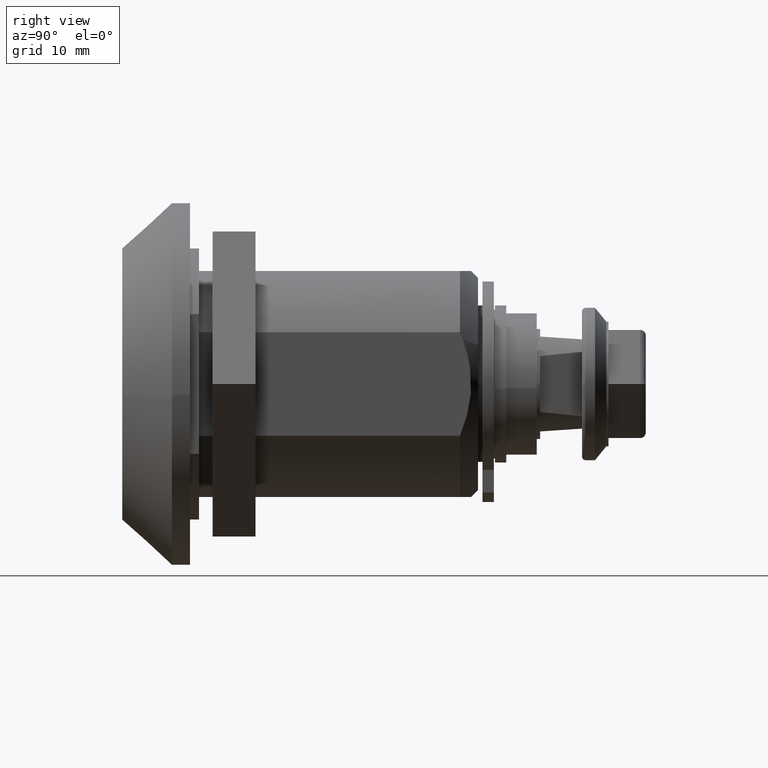
[diagram: clean part render]
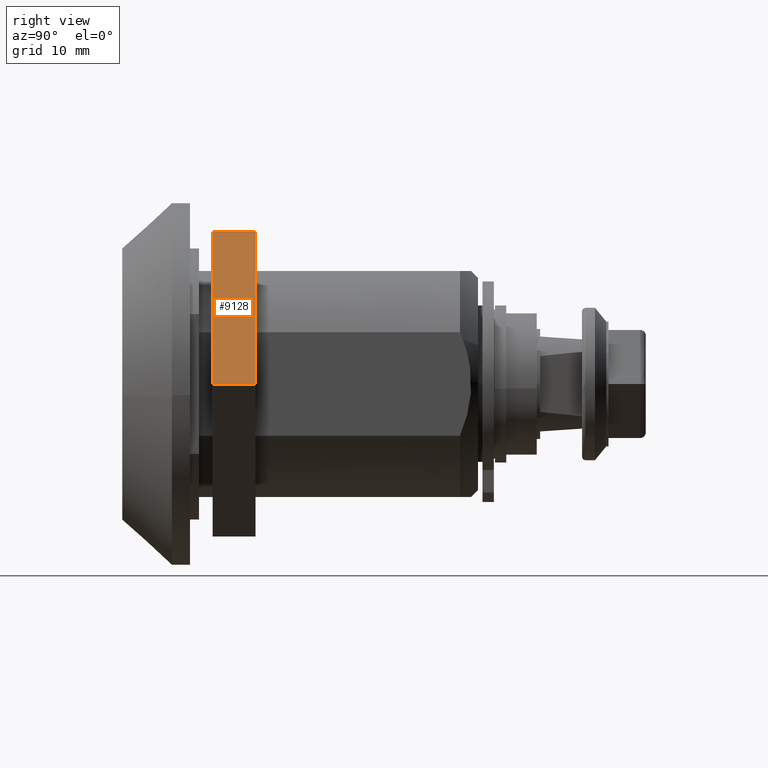
[diagram: same view with one face highlighted and labeled with its STEP entity id]
A machine part, right view. The second image highlights one B-rep face of the part: STEP entity #9128.
In plain terms, the highlighted face is a freeform B-spline surface patch.
Its self-contained STEP definition (entity closure, byte-faithful):
#8926=CARTESIAN_POINT('',(15.588457268120250,1.999999999999999,0.0));
#8927=VERTEX_POINT('',#8926);
#8928=CARTESIAN_POINT('',(7.794228634060120,2.0,13.500000000000000));
#8929=VERTEX_POINT('',#8928);
#8930=CARTESIAN_POINT('',(15.588457268120250,1.999999999999999,0.0));
#8931=CARTESIAN_POINT('',(7.794228634060120,2.0,13.500000000000000));
#8932=QUASI_UNIFORM_CURVE('',1,(#8930,#8931),.UNSPECIFIED.,.F.,.U.);
#8933=EDGE_CURVE('',#8927,#8929,#8932,.T.);
#8982=CARTESIAN_POINT('',(15.588457268120250,5.799999999999999,0.0));
#8983=VERTEX_POINT('',#8982);
#8984=CARTESIAN_POINT('',(7.794228634060120,5.799999999999999,13.500000000000000));
#8985=VERTEX_POINT('',#8984);
#8986=CARTESIAN_POINT('',(15.588457268120250,5.799999999999999,0.0));
#8987=CARTESIAN_POINT('',(7.794228634060120,5.799999999999999,13.500000000000000));
#8988=QUASI_UNIFORM_CURVE('',1,(#8986,#8987),.UNSPECIFIED.,.F.,.U.);
#8989=EDGE_CURVE('',#8983,#8985,#8988,.T.);
#9045=CARTESIAN_POINT('',(15.588457268120250,5.799999999999999,0.0));
#9046=CARTESIAN_POINT('',(15.588457268120250,1.999999999999999,0.0));
#9047=QUASI_UNIFORM_CURVE('',1,(#9045,#9046),.UNSPECIFIED.,.F.,.U.);
#9048=EDGE_CURVE('',#8983,#8927,#9047,.T.);
#9107=CARTESIAN_POINT('',(7.794228634060120,5.799999999999999,13.500000000000000));
#9108=CARTESIAN_POINT('',(7.794228634060120,2.0,13.500000000000000));
#9109=QUASI_UNIFORM_CURVE('',1,(#9107,#9108),.UNSPECIFIED.,.F.,.U.);
#9110=EDGE_CURVE('',#8985,#8929,#9109,.T.);
#9117=CARTESIAN_POINT('',(7.404906928895556,1.810190007365137,14.174324973834389));
#9118=CARTESIAN_POINT('',(15.977779182342330,1.810190007365137,-0.674325335932598));
#9119=CARTESIAN_POINT('',(7.404906928895557,5.989810094558805,14.174324973834389));
#9120=CARTESIAN_POINT('',(15.977779182342330,5.989810094558805,-0.674325335932598));
#9121=B_SPLINE_SURFACE_WITH_KNOTS('',1,1,((#9117,#9119),(#9118,#9120)),.UNSPECIFIED.,.F.,.F.,.U.,(2,2),(2,2),(0.0,17.145744506893269),(0.0,4.179620087193668),.UNSPECIFIED.);
#9122=ORIENTED_EDGE('',*,*,#8933,.F.);
#9123=ORIENTED_EDGE('',*,*,#9048,.F.);
#9124=ORIENTED_EDGE('',*,*,#8989,.T.);
#9125=ORIENTED_EDGE('',*,*,#9110,.T.);
#9126=EDGE_LOOP('',(#9122,#9123,#9124,#9125));
#9127=FACE_OUTER_BOUND('',#9126,.T.);
#9128=ADVANCED_FACE('',(#9127),#9121,.T.);